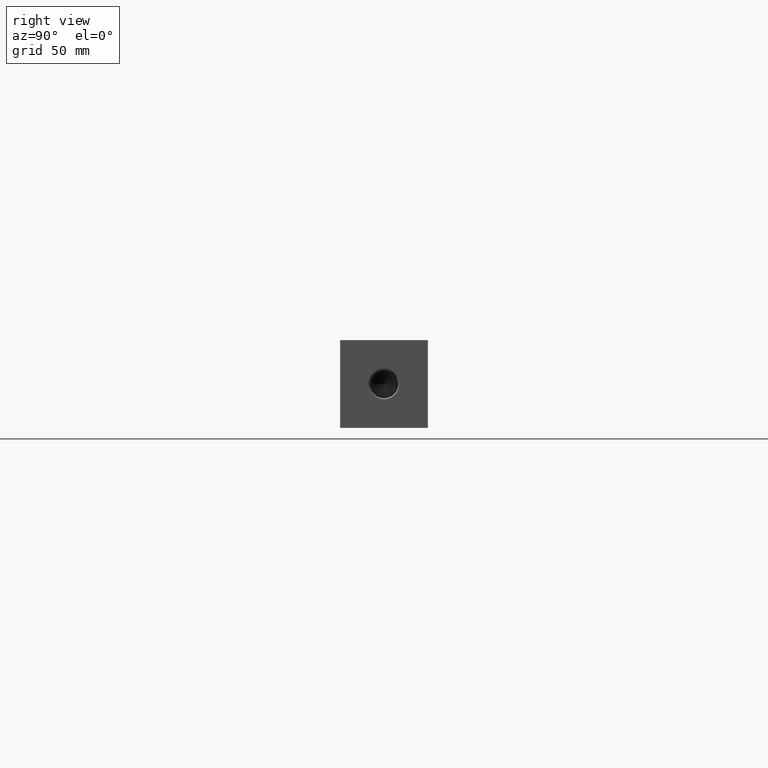
[diagram: clean part render]
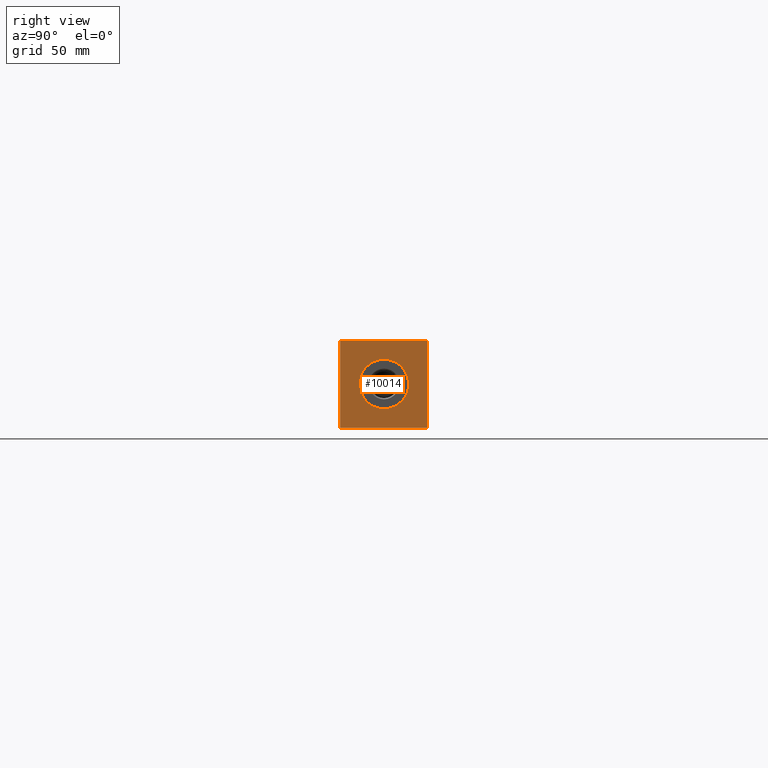
[diagram: same view with one face highlighted and labeled with its STEP entity id]
A machine part, right view. The second image highlights one B-rep face of the part: STEP entity #10014.
In plain terms, the highlighted planar face has unit normal (1, 0, 0).
Its self-contained STEP definition (entity closure, byte-faithful):
#524=CIRCLE('',#10768,12.5095);
#525=CIRCLE('',#10769,12.5095);
#635=FACE_BOUND('',#2033,.T.);
#893=PLANE('',#10815);
#1422=FACE_OUTER_BOUND('',#2032,.T.);
#2032=EDGE_LOOP('',(#9032,#9033,#9034,#9035));
#2033=EDGE_LOOP('',(#9036,#9037));
#2310=LINE('',#15480,#3129);
#2866=LINE('',#17516,#3685);
#2867=LINE('',#17519,#3686);
#2868=LINE('',#17520,#3687);
#3129=VECTOR('',#11206,10.);
#3685=VECTOR('',#13202,10.);
#3686=VECTOR('',#13205,10.);
#3687=VECTOR('',#13206,10.);
#4218=VERTEX_POINT('',#15477);
#4219=VERTEX_POINT('',#15479);
#4818=VERTEX_POINT('',#17418);
#4819=VERTEX_POINT('',#17419);
#4851=VERTEX_POINT('',#17514);
#4852=VERTEX_POINT('',#17518);
#5316=EDGE_CURVE('',#4218,#4219,#2310,.T.);
#6209=EDGE_CURVE('',#4818,#4819,#524,.T.);
#6210=EDGE_CURVE('',#4819,#4818,#525,.T.);
#6256=EDGE_CURVE('',#4851,#4219,#2866,.T.);
#6257=EDGE_CURVE('',#4852,#4851,#2867,.T.);
#6258=EDGE_CURVE('',#4852,#4218,#2868,.T.);
#9032=ORIENTED_EDGE('',*,*,#6257,.T.);
#9033=ORIENTED_EDGE('',*,*,#6256,.T.);
#9034=ORIENTED_EDGE('',*,*,#5316,.F.);
#9035=ORIENTED_EDGE('',*,*,#6258,.F.);
#9036=ORIENTED_EDGE('',*,*,#6209,.T.);
#9037=ORIENTED_EDGE('',*,*,#6210,.T.);
#10014=ADVANCED_FACE('',(#1422,#635),#893,.T.);
#10768=AXIS2_PLACEMENT_3D('',#17420,#13091,#13092);
#10769=AXIS2_PLACEMENT_3D('',#17421,#13093,#13094);
#10815=AXIS2_PLACEMENT_3D('',#17517,#13203,#13204);
#11206=DIRECTION('',(0.,1.,0.));
#13091=DIRECTION('center_axis',(-1.,0.,0.));
#13092=DIRECTION('ref_axis',(0.,0.,-1.));
#13093=DIRECTION('center_axis',(-1.,0.,0.));
#13094=DIRECTION('ref_axis',(0.,0.,-1.));
#13202=DIRECTION('',(0.,0.,1.));
#13203=DIRECTION('center_axis',(1.,0.,0.));
#13204=DIRECTION('ref_axis',(0.,1.,0.));
#13205=DIRECTION('',(0.,1.,0.));
#13206=DIRECTION('',(0.,0.,1.));
#15477=CARTESIAN_POINT('',(365.125,0.,44.45));
#15479=CARTESIAN_POINT('',(365.125,44.45,44.45));
#15480=CARTESIAN_POINT('',(365.125,0.,44.45));
#17418=CARTESIAN_POINT('',(365.125,22.225,9.7155));
#17419=CARTESIAN_POINT('',(365.125,22.225,34.7345));
#17420=CARTESIAN_POINT('Origin',(365.125,22.225,22.225));
#17421=CARTESIAN_POINT('Origin',(365.125,22.225,22.225));
#17514=CARTESIAN_POINT('',(365.125,44.45,0.));
#17516=CARTESIAN_POINT('',(365.125,44.45,0.));
#17517=CARTESIAN_POINT('Origin',(365.125,0.,0.));
#17518=CARTESIAN_POINT('',(365.125,0.,0.));
#17519=CARTESIAN_POINT('',(365.125,0.,0.));
#17520=CARTESIAN_POINT('',(365.125,0.,0.));